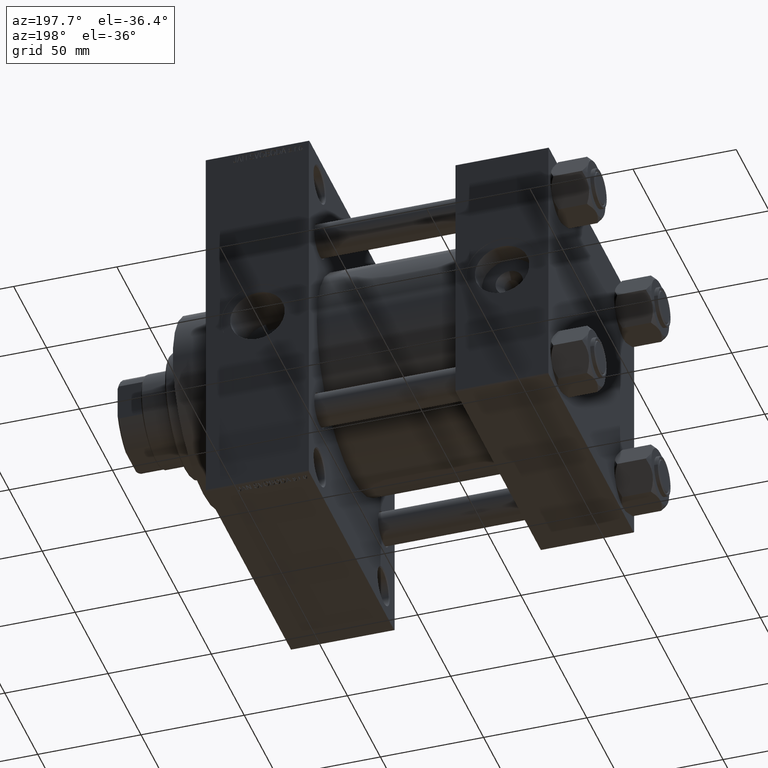
[diagram: clean part render]
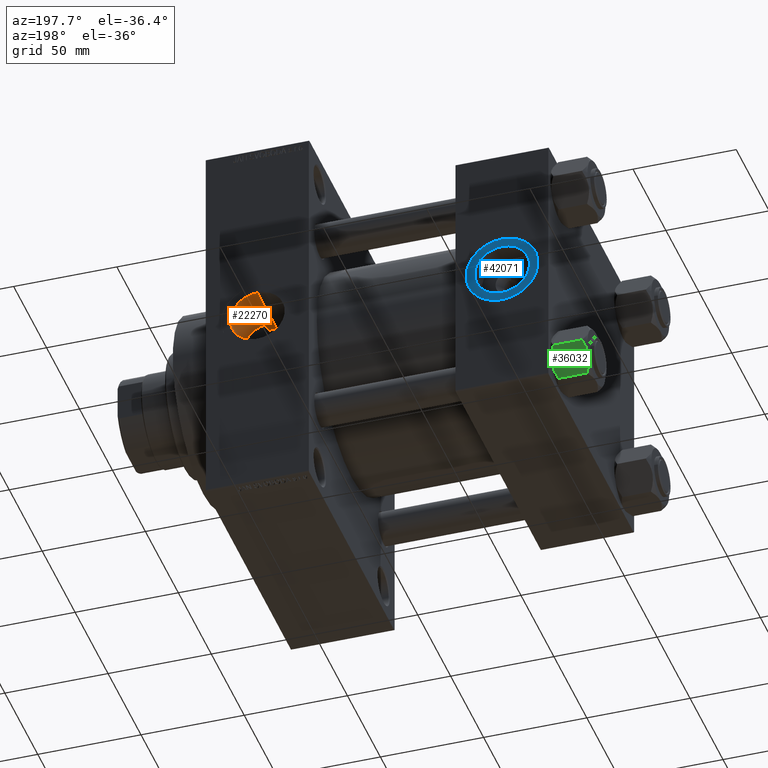
[diagram: same view with three faces highlighted in distinct colors, each labeled with its STEP entity id]
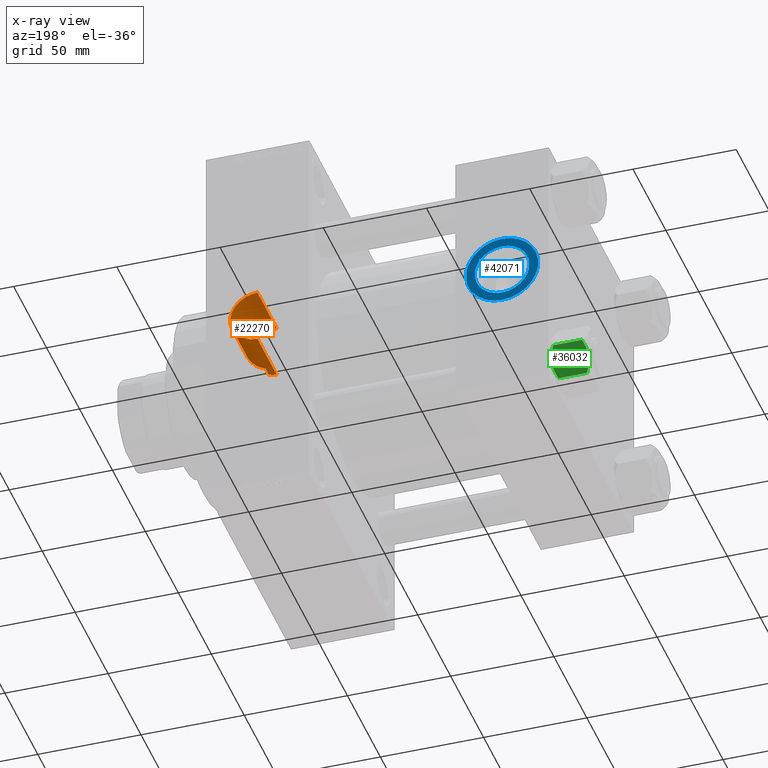
[diagram: x-ray of the same camera — body ghosted, the three highlighted faces saturated]
A machine part, auxiliary view with three faces highlighted in distinct colors.
The next image is the same camera in x-ray (body ghosted, the three faces saturated) — at least one of them is partly hidden behind the body in this view.
Their STEP definitions:

[orange] entity #22270 — the highlighted cylindrical surface (edge-blend (fillet) strip) has radius 13.22 mm, axis along (0, 1, 0).
#372 = CARTESIAN_POINT ( 'NONE',  ( 146.0894838391766086, 40.96701803660461394, -12.22163151364322076 ) ) ;
#677 = CARTESIAN_POINT ( 'NONE',  ( 141.0000000000000000, -37.39180658914465027, 13.22000000000001840 ) ) ;
#766 = ORIENTED_EDGE ( 'NONE', *, *, #33892, .F. ) ;
#1122 = CARTESIAN_POINT ( 'NONE',  ( 144.7399999999999807, 35.82204907595319554, -12.67993690836039811 ) ) ;
#1124 = CARTESIAN_POINT ( 'NONE',  ( 152.3813469663714670, 42.21646729893780048, -6.762467872710385741 ) ) ;
#1349 = VERTEX_POINT ( 'NONE', #28658 ) ;
#1501 = EDGE_CURVE ( 'NONE', #34100, #37805, #4705, .T. ) ;
#2157 = LINE ( 'NONE', #33372, #33901 ) ;
#2183 = B_SPLINE_CURVE_WITH_KNOTS ( 'NONE', 3,
 ( #1122, #34618, #8927, #12204 ),
 .UNSPECIFIED., .F., .F.,
 ( 4, 4 ),
 ( 0.000000000000000000, 0.003783319139312589507 ),
 .UNSPECIFIED. ) ;
#2382 = CARTESIAN_POINT ( 'NONE',  ( 141.6282740465759389, 35.62627681922430867, 13.22000000000001840 ) ) ;
#2891 = CARTESIAN_POINT ( 'NONE',  ( 153.3069645189583525, 42.47597988253322399, 4.879662359427110019 ) ) ;
#3553 = FACE_OUTER_BOUND ( 'NONE', #22161, .T. ) ;
#3897 = CARTESIAN_POINT ( 'NONE',  ( 149.9249778787971934, 41.62197581820227299, 9.758883457264651895 ) ) ;
#4143 = CARTESIAN_POINT ( 'NONE',  ( 154.2204402740232183, 42.75013615013602220, -0.3392730657541564998 ) ) ;
#4705 = LINE ( 'NONE', #677, #24949 ) ;
#6673 = CARTESIAN_POINT ( 'NONE',  ( 152.5392672892635062, 42.26019519886383335, 6.460440162556753130 ) ) ;
#7674 = CARTESIAN_POINT ( 'NONE',  ( 147.3542414019935052, 41.14336595071720382, 11.61405540322420116 ) ) ;
#7751 = VERTEX_POINT ( 'NONE', #20559 ) ;
#7813 = EDGE_CURVE ( 'NONE', #1349, #45401, #2157, .T. ) ;
#7930 = CARTESIAN_POINT ( 'NONE',  ( 153.9355267676177732, 42.66274983104982255, -2.818638351193889946 ) ) ;
#8177 = CARTESIAN_POINT ( 'NONE',  ( 152.0065971449162419, 42.11617814458289644, -7.356591765198853494 ) ) ;
#8927 = CARTESIAN_POINT ( 'NONE',  ( 142.2727728702443244, 35.62627681922430867, -13.22000000000000774 ) ) ;
#9402 = AXIS2_PLACEMENT_3D ( 'NONE', #18169, #25964, #18664 ) ;
#10374 = CYLINDRICAL_SURFACE ( 'NONE', #9402, 13.22000000000001307 ) ;
#11957 = CARTESIAN_POINT ( 'NONE',  ( 147.9852428248123601, 41.24640677797844290, -11.24586139236917504 ) ) ;
#12204 = CARTESIAN_POINT ( 'NONE',  ( 141.0000000000000000, 35.62627681922430867, -13.22000000000000774 ) ) ;
#14245 = CARTESIAN_POINT ( 'NONE',  ( 151.7830761643834308, 42.05979779156206888, 7.656286047219438728 ) ) ;
#14911 = EDGE_CURVE ( 'NONE', #44430, #45401, #46513, .T. ) ;
#15126 = ORIENTED_EDGE ( 'NONE', *, *, #43290, .T. ) ;
#15495 = CARTESIAN_POINT ( 'NONE',  ( 149.6796625534670682, 41.56787051534882949, -9.996256312412166167 ) ) ;
#15748 = CARTESIAN_POINT ( 'NONE',  ( 154.2190876467556677, 42.74971786429957632, 0.7287734874664830720 ) ) ;
#15995 = CARTESIAN_POINT ( 'NONE',  ( 145.4270130609600358, 40.88917361113285409, -12.47729955562274284 ) ) ;
#17253 = EDGE_CURVE ( 'NONE', #37805, #7751, #19792, .T. ) ;
#17901 = CARTESIAN_POINT ( 'NONE',  ( 141.0000000000000000, 64.79999999999996874, 4.747664250041786301E-15 ) ) ;
#18151 = LINE ( 'NONE', #48109, #35510 ) ;
#18169 = CARTESIAN_POINT ( 'NONE',  ( 141.0000000000000000, -37.39180658914465027, 4.747664250041786301E-15 ) ) ;
#18255 = CARTESIAN_POINT ( 'NONE',  ( 153.6458388575749439, 42.57581106965983508, 3.870036135680960498 ) ) ;
#18664 = DIRECTION ( 'NONE',  ( 0.000000000000000000, 0.000000000000000000, 1.000000000000000000 ) ) ;
#18958 = AXIS2_PLACEMENT_3D ( 'NONE', #17901, #48588, #37776 ) ;
#19256 = CARTESIAN_POINT ( 'NONE',  ( 150.6899591689121962, 41.79050880085015507, -9.020331125314259069 ) ) ;
#19505 = CARTESIAN_POINT ( 'NONE',  ( 153.0363689430458010, 42.39775029133585349, -5.512880659442456199 ) ) ;
#19792 = CIRCLE ( 'NONE', #18958, 13.22000000000001307 ) ;
#20559 = CARTESIAN_POINT ( 'NONE',  ( 141.0000000000000000, 64.79999999999996874, -13.22000000000000774 ) ) ;
#21128 = ORIENTED_EDGE ( 'NONE', *, *, #7813, .T. ) ;
#21537 = DIRECTION ( 'NONE',  ( -0.000000000000000000, 1.000000000000000000, -0.000000000000000000 ) ) ;
#22161 = EDGE_LOOP ( 'NONE', ( #766, #24061, #21128, #36257, #15126, #44152, #30688, #25311 ) ) ;
#22265 = CARTESIAN_POINT ( 'NONE',  ( 149.1188874313220651, 41.45647642344566464, 10.43915827880388392 ) ) ;
#22270 = ADVANCED_FACE ( 'NONE', ( #3553 ), #10374, .F. ) ;
#23017 = CARTESIAN_POINT ( 'NONE',  ( 148.8355753955778198, 41.40179266465072772, 10.65353493722053457 ) ) ;
#23035 = EDGE_CURVE ( 'NONE', #34100, #25022, #25033, .T. ) ;
#23575 = DIRECTION ( 'NONE',  ( -0.000000000000000000, 1.000000000000000000, -0.000000000000000000 ) ) ;
#24025 = CARTESIAN_POINT ( 'NONE',  ( 154.1491276445503047, 42.72812791392466636, -1.413347075717677814 ) ) ;
#24061 = ORIENTED_EDGE ( 'NONE', *, *, #25928, .F. ) ;
#24722 = VERTEX_POINT ( 'NONE', #36647 ) ;
#24949 = VECTOR ( 'NONE', #23575, 1000.000000000000000 ) ;
#25022 = VERTEX_POINT ( 'NONE', #29022 ) ;
#25033 = B_SPLINE_CURVE_WITH_KNOTS ( 'NONE', 3,
 ( #39914, #2382, #44181, #48188, #32862, #33598 ),
 .UNSPECIFIED., .F., .F.,
 ( 4, 2, 4 ),
 ( 0.04545619301634513942, 0.04734185353013070641, 0.04922751404391628033 ),
 .UNSPECIFIED. ) ;
#25072 = CARTESIAN_POINT ( 'NONE',  ( 141.0000000000000000, 35.62627681922430156, 13.22000000000001840 ) ) ;
#25311 = ORIENTED_EDGE ( 'NONE', *, *, #17253, .T. ) ;
#25852 = CARTESIAN_POINT ( 'NONE',  ( 144.7399999999999807, 40.82623788692755795, 12.67993690836040344 ) ) ;
#25928 = EDGE_CURVE ( 'NONE', #1349, #24722, #2183, .T. ) ;
#25964 = DIRECTION ( 'NONE',  ( -0.000000000000000000, 1.000000000000000000, -0.000000000000000000 ) ) ;
#26434 = VECTOR ( 'NONE', #30659, 1000.000000000000000 ) ;
#28058 = CARTESIAN_POINT ( 'NONE',  ( 154.1061453106131296, 42.71489450414986067, -1.767314014186000426 ) ) ;
#28658 = CARTESIAN_POINT ( 'NONE',  ( 144.7399999999999807, 35.82204907595319554, -12.67993690836039811 ) ) ;
#29022 = CARTESIAN_POINT ( 'NONE',  ( 144.7399999999999807, 35.82204907595318844, 12.67993690836040876 ) ) ;
#29583 = CARTESIAN_POINT ( 'NONE',  ( 151.9856094472935411, 42.11228528523243853, 7.362719038215917777 ) ) ;
#30082 = CARTESIAN_POINT ( 'NONE',  ( 146.0866117877859551, 40.96674013684113191, 12.22248122208935328 ) ) ;
#30659 = DIRECTION ( 'NONE',  ( -0.000000000000000000, 1.000000000000000000, -0.000000000000000000 ) ) ;
#30688 = ORIENTED_EDGE ( 'NONE', *, *, #1501, .T. ) ;
#31095 = CARTESIAN_POINT ( 'NONE',  ( 149.1389740240205413, 41.45739201802923901, -10.44126992344760652 ) ) ;
#31340 = CARTESIAN_POINT ( 'NONE',  ( 154.2064277639875627, 42.74579618513910617, -0.6981213961015061420 ) ) ;
#32862 = CARTESIAN_POINT ( 'NONE',  ( 144.1313497833392319, 35.75850296764753011, 12.85946081504565441 ) ) ;
#33370 = CARTESIAN_POINT ( 'NONE',  ( 150.6811910902559362, 41.78848794132223077, 9.029589412144920502 ) ) ;
#33372 = CARTESIAN_POINT ( 'NONE',  ( 144.7399999999999807, -37.39180658914465027, -12.67993690836039633 ) ) ;
#33598 = CARTESIAN_POINT ( 'NONE',  ( 144.7399999999999807, 35.82204907595318844, 12.67993690836040876 ) ) ;
#33616 = CARTESIAN_POINT ( 'NONE',  ( 153.7463103793545542, 42.60581913250619834, 3.525264913244969822 ) ) ;
#33892 = EDGE_CURVE ( 'NONE', #24722, #7751, #49774, .T. ) ;
#33901 = VECTOR ( 'NONE', #21537, 1000.000000000000000 ) ;
#34100 = VERTEX_POINT ( 'NONE', #25072 ) ;
#34190 = CARTESIAN_POINT ( 'NONE',  ( 141.0000000000000000, -37.39180658914465027, -13.22000000000000774 ) ) ;
#34618 = CARTESIAN_POINT ( 'NONE',  ( 143.5192982015359462, 35.69460173991232210, -13.03998796849188579 ) ) ;
#35510 = VECTOR ( 'NONE', #41304, 1000.000000000000000 ) ;
#35628 = CARTESIAN_POINT ( 'NONE',  ( 153.9180342834379189, 42.65750819507706382, 2.832015403792554231 ) ) ;
#36257 = ORIENTED_EDGE ( 'NONE', *, *, #14911, .F. ) ;
#36647 = CARTESIAN_POINT ( 'NONE',  ( 141.0000000000000000, 35.62627681922430867, -13.22000000000000774 ) ) ;
#37392 = CARTESIAN_POINT ( 'NONE',  ( 153.0298137930815017, 42.39589313351282840, 5.526869527314867803 ) ) ;
#37776 = DIRECTION ( 'NONE',  ( 0.000000000000000000, 0.000000000000000000, 1.000000000000000000 ) ) ;
#37805 = VERTEX_POINT ( 'NONE', #46970 ) ;
#38204 = CARTESIAN_POINT ( 'NONE',  ( 144.7399999999999807, 40.82623788692755795, -12.67993690836039278 ) ) ;
#38394 = CARTESIAN_POINT ( 'NONE',  ( 149.6630199548697533, 41.56646507779677790, 9.992219170631109648 ) ) ;
#39914 = CARTESIAN_POINT ( 'NONE',  ( 141.0000000000000000, 35.62627681922430156, 13.22000000000001840 ) ) ;
#41304 = DIRECTION ( 'NONE',  ( 0.000000000000000000, -1.000000000000000000, 0.000000000000000000 ) ) ;
#42159 = CARTESIAN_POINT ( 'NONE',  ( 144.7399999999999807, 40.82623788692755795, 12.67993690836040344 ) ) ;
#42409 = CARTESIAN_POINT ( 'NONE',  ( 154.1610424353113729, 42.73166586794578592, 1.434504108584251147 ) ) ;
#42662 = CARTESIAN_POINT ( 'NONE',  ( 153.7664851930732652, 42.61139927358284041, -3.505481660100325136 ) ) ;
#42918 = CARTESIAN_POINT ( 'NONE',  ( 151.1624956355439906, 41.90350341365520137, -8.484592245230071939 ) ) ;
#43290 = EDGE_CURVE ( 'NONE', #44430, #25022, #18151, .T. ) ;
#44152 = ORIENTED_EDGE ( 'NONE', *, *, #23035, .F. ) ;
#44181 = CARTESIAN_POINT ( 'NONE',  ( 142.2553808884960063, 35.64290802874815967, 13.17544286684376331 ) ) ;
#44430 = VERTEX_POINT ( 'NONE', #25852 ) ;
#45401 = VERTEX_POINT ( 'NONE', #38204 ) ;
#45434 = CARTESIAN_POINT ( 'NONE',  ( 152.3632172565832548, 42.21236386932922358, 6.765392829973857047 ) ) ;
#45681 = CARTESIAN_POINT ( 'NONE',  ( 147.9623401956243640, 41.24246182355482659, 11.26040908465784263 ) ) ;
#46188 = CARTESIAN_POINT ( 'NONE',  ( 153.9894081557862933, 42.67922043224352535, 2.483804695984523470 ) ) ;
#46433 = CARTESIAN_POINT ( 'NONE',  ( 153.3180906512882871, 42.47921328321763923, -4.851410986599756114 ) ) ;
#46513 = B_SPLINE_CURVE_WITH_KNOTS ( 'NONE', 3,
 ( #42159, #49446, #30082, #7674, #45681, #23017, #22265, #38394, #3897, #33370, #48704, #14245, #29583, #45434, #6673, #37392, #2891, #18255, #33616, #35628, #46188, #42409, #15748, #4143, #31340, #24025, #28058, #7930, #42662, #46433, #19505, #1124, #8177, #42918, #19256, #15495, #31095, #11957, #47182, #372, #15995, #46684 ),
 .UNSPECIFIED., .F., .F.,
 ( 4, 2, 2, 2, 2, 2, 2, 2, 2, 2, 2, 2, 2, 2, 2, 2, 2, 2, 2, 2, 4 ),
 ( 1.734723475976807094E-18, 0.002125631886811205854, 0.004251263773622409974, 0.005314079717027975387, 0.006376895660433540801, 0.008502527547244679434, 0.009565343490650272604, 0.01062815943405586751, 0.01275379132086709548, 0.01381660726427269732, 0.01487942320767829917, 0.01700505509448948377, 0.01806787103789508214, 0.01913068698130067358, 0.02125631886811184951, 0.02338195075492302544, 0.02550758264173419443, 0.02763321452854537036, 0.02975884641535654629, 0.03188447830216771528, 0.03401011018897889121 ),
 .UNSPECIFIED. ) ;
#46684 = CARTESIAN_POINT ( 'NONE',  ( 144.7399999999999807, 40.82623788692755795, -12.67993690836039278 ) ) ;
#46970 = CARTESIAN_POINT ( 'NONE',  ( 141.0000000000000000, 64.79999999999996874, 13.22000000000001840 ) ) ;
#47182 = CARTESIAN_POINT ( 'NONE',  ( 147.3674952756207972, 41.14533651760915234, -11.60715841709175322 ) ) ;
#48109 = CARTESIAN_POINT ( 'NONE',  ( 144.7399999999999807, -37.39180658914465027, 12.67993690836040699 ) ) ;
#48188 = CARTESIAN_POINT ( 'NONE',  ( 143.5072241350725619, 35.70892163639344119, 12.99546471078180154 ) ) ;
#48588 = DIRECTION ( 'NONE',  ( 0.000000000000000000, 1.000000000000000000, 0.000000000000000000 ) ) ;
#48704 = CARTESIAN_POINT ( 'NONE',  ( 151.1459938556710654, 41.89947882874082552, 8.504551669291316784 ) ) ;
#49446 = CARTESIAN_POINT ( 'NONE',  ( 145.4270925851358811, 40.88918089616405638, 12.47727609963713391 ) ) ;
#49774 = LINE ( 'NONE', #34190, #26434 ) ;

[blue] entity #42071 — the highlighted planar face has unit normal (0, 1, 0).
#410 = ORIENTED_EDGE ( 'NONE', *, *, #40265, .F. ) ;
#1371 = FACE_OUTER_BOUND ( 'NONE', #29244, .T. ) ;
#3380 = CIRCLE ( 'NONE', #44399, 13.22000000000000419 ) ;
#4325 = VERTEX_POINT ( 'NONE', #7065 ) ;
#5031 = CIRCLE ( 'NONE', #28350, 17.50000000000000000 ) ;
#5276 = EDGE_CURVE ( 'NONE', #43586, #38360, #5031, .T. ) ;
#5367 = DIRECTION ( 'NONE',  ( 0.000000000000000000, 0.000000000000000000, 1.000000000000000000 ) ) ;
#5512 = DIRECTION ( 'NONE',  ( 0.000000000000000000, 1.000000000000000000, 0.000000000000000000 ) ) ;
#5637 = EDGE_LOOP ( 'NONE', ( #410, #34992 ) ) ;
#6488 = DIRECTION ( 'NONE',  ( 0.000000000000000000, 0.000000000000000000, 1.000000000000000000 ) ) ;
#7065 = CARTESIAN_POINT ( 'NONE',  ( 22.50000000000000000, 64.79999999999999716, 13.22000000000000419 ) ) ;
#8074 = CIRCLE ( 'NONE', #26538, 17.50000000000000000 ) ;
#8726 = CARTESIAN_POINT ( 'NONE',  ( 22.50000000000000000, 64.79999999999999716, 0.000000000000000000 ) ) ;
#8934 = DIRECTION ( 'NONE',  ( 0.000000000000000000, 1.000000000000000000, 0.000000000000000000 ) ) ;
#9426 = CARTESIAN_POINT ( 'NONE',  ( 22.50000000000000000, 64.79999999999999716, 0.000000000000000000 ) ) ;
#9876 = AXIS2_PLACEMENT_3D ( 'NONE', #9426, #8934, #28064 ) ;
#10518 = DIRECTION ( 'NONE',  ( 0.000000000000000000, 1.000000000000000000, 0.000000000000000000 ) ) ;
#16468 = DIRECTION ( 'NONE',  ( 0.000000000000000000, 1.000000000000000000, 0.000000000000000000 ) ) ;
#20509 = PLANE ( 'NONE',  #9876 ) ;
#24214 = ORIENTED_EDGE ( 'NONE', *, *, #5276, .T. ) ;
#24632 = CARTESIAN_POINT ( 'NONE',  ( 22.50000000000000000, 64.79999999999999716, 0.000000000000000000 ) ) ;
#25618 = CARTESIAN_POINT ( 'NONE',  ( 22.50000000000000000, 64.79999999999999716, 0.000000000000000000 ) ) ;
#26538 = AXIS2_PLACEMENT_3D ( 'NONE', #39847, #16468, #5367 ) ;
#28064 = DIRECTION ( 'NONE',  ( 0.000000000000000000, -0.000000000000000000, 1.000000000000000000 ) ) ;
#28350 = AXIS2_PLACEMENT_3D ( 'NONE', #8726, #39179, #30884 ) ;
#29244 = EDGE_LOOP ( 'NONE', ( #44341, #24214 ) ) ;
#30884 = DIRECTION ( 'NONE',  ( 0.000000000000000000, 0.000000000000000000, 1.000000000000000000 ) ) ;
#31361 = VERTEX_POINT ( 'NONE', #44862 ) ;
#34992 = ORIENTED_EDGE ( 'NONE', *, *, #45297, .F. ) ;
#36230 = DIRECTION ( 'NONE',  ( 0.000000000000000000, 0.000000000000000000, 1.000000000000000000 ) ) ;
#37309 = EDGE_CURVE ( 'NONE', #38360, #43586, #8074, .T. ) ;
#37900 = CIRCLE ( 'NONE', #44326, 13.22000000000000419 ) ;
#38360 = VERTEX_POINT ( 'NONE', #46599 ) ;
#39179 = DIRECTION ( 'NONE',  ( 0.000000000000000000, 1.000000000000000000, 0.000000000000000000 ) ) ;
#39847 = CARTESIAN_POINT ( 'NONE',  ( 22.50000000000000000, 64.79999999999999716, 0.000000000000000000 ) ) ;
#40265 = EDGE_CURVE ( 'NONE', #4325, #31361, #37900, .T. ) ;
#42071 = ADVANCED_FACE ( 'NONE', ( #43909, #1371 ), #20509, .T. ) ;
#43307 = CARTESIAN_POINT ( 'NONE',  ( 22.50000000000000355, 64.79999999999999716, -17.50000000000000000 ) ) ;
#43586 = VERTEX_POINT ( 'NONE', #43307 ) ;
#43909 = FACE_BOUND ( 'NONE', #5637, .T. ) ;
#44326 = AXIS2_PLACEMENT_3D ( 'NONE', #24632, #5512, #36230 ) ;
#44341 = ORIENTED_EDGE ( 'NONE', *, *, #37309, .T. ) ;
#44399 = AXIS2_PLACEMENT_3D ( 'NONE', #25618, #10518, #6488 ) ;
#44862 = CARTESIAN_POINT ( 'NONE',  ( 22.50000000000000000, 64.79999999999999716, -13.22000000000000419 ) ) ;
#45297 = EDGE_CURVE ( 'NONE', #31361, #4325, #3380, .T. ) ;
#46599 = CARTESIAN_POINT ( 'NONE',  ( 22.50000000000000000, 64.79999999999999716, 17.50000000000000000 ) ) ;

[green] entity #36032 — the highlighted planar face has unit normal (0, -0.866, 0.5).
#418 = DIRECTION ( 'NONE',  ( 0.4999999999999994449, -0.8660254037844390407, 0.000000000000000000 ) ) ;
#1103 = EDGE_CURVE ( 'NONE', #9160, #38809, #39616, .T. ) ;
#1424 = CARTESIAN_POINT ( 'NONE',  ( -9.114548888011787753, -11.26777185211903820, -17.08577173959730899 ) ) ;
#3989 = EDGE_CURVE ( 'NONE', #26083, #30445, #30288, .T. ) ;
#4009 = VERTEX_POINT ( 'NONE', #23228 ) ;
#4395 = CARTESIAN_POINT ( 'NONE',  ( -11.71500000000000874, -6.763658403556459753, 0.000000000000000000 ) ) ;
#4425 = CARTESIAN_POINT ( 'NONE',  ( -11.71500000000000874, -6.763658403556459753, -18.00000000000000000 ) ) ;
#4463 = EDGE_CURVE ( 'NONE', #26083, #48902, #34424, .T. ) ;
#4491 = ORIENTED_EDGE ( 'NONE', *, *, #22154, .F. ) ;
#4545 = VECTOR ( 'NONE', #44356, 1000.000000000000000 ) ;
#4636 = EDGE_CURVE ( 'NONE', #38809, #24960, #31625, .T. ) ;
#4888 = CARTESIAN_POINT ( 'NONE',  ( -7.809999999999999609, -13.52731680711293727, -1.999999999999998224 ) ) ;
#6474 = LINE ( 'NONE', #46234, #9763 ) ;
#7385 = VECTOR ( 'NONE', #22822, 999.9999999999998863 ) ;
#7445 = ORIENTED_EDGE ( 'NONE', *, *, #1103, .F. ) ;
#7977 = CARTESIAN_POINT ( 'NONE',  ( -7.809999999999999609, -13.52731680711293727, -16.00000000000000000 ) ) ;
#8198 = CARTESIAN_POINT ( 'NONE',  ( -13.99051971937274530, -2.822342635977989289, -17.26828031537188934 ) ) ;
#8244 = CARTESIAN_POINT ( 'NONE',  ( -7.809999999999999609, -13.52731680711293727, -16.00000000000000000 ) ) ;
#8845 = ORIENTED_EDGE ( 'NONE', *, *, #3989, .T. ) ;
#9143 = ORIENTED_EDGE ( 'NONE', *, *, #39462, .F. ) ;
#9160 = VERTEX_POINT ( 'NONE', #26755 ) ;
#9174 = CARTESIAN_POINT ( 'NONE',  ( -7.809999999999999609, -13.52731680711293727, -16.00000000000000000 ) ) ;
#9624 = B_SPLINE_CURVE_WITH_KNOTS ( 'NONE', 3,
 ( #4425, #42938, #39159, #8198, #34898, #15763, #11978, #27324 ),
 .UNSPECIFIED., .F., .F.,
 ( 4, 2, 2, 4 ),
 ( 0.007890825462474436100, 0.01181022244528555712, 0.01376992093669111850, 0.01572961942809667987 ),
 .UNSPECIFIED. ) ;
#9763 = VECTOR ( 'NONE', #418, 999.9999999999998863 ) ;
#10685 = CARTESIAN_POINT ( 'NONE',  ( -13.36540581434588226, -3.905071680002305534, -0.3836066851120543686 ) ) ;
#10701 = EDGE_CURVE ( 'NONE', #18302, #26747, #9624, .T. ) ;
#11978 = CARTESIAN_POINT ( 'NONE',  ( -15.22736220980736199, -0.6800686015852018818, -16.29368822085855584 ) ) ;
#12951 = DIRECTION ( 'NONE',  ( 0.4999999999999994449, -0.8660254037844390407, 0.000000000000000000 ) ) ;
#13653 = AXIS2_PLACEMENT_3D ( 'NONE', #38166, #45954, #42942 ) ;
#13798 = CARTESIAN_POINT ( 'NONE',  ( -8.506059550806618574, -12.32170630002230816, -1.434462921875002461 ) ) ;
#14225 = CARTESIAN_POINT ( 'NONE',  ( -13.04337073483128329, -4.462852799541069615, -0.2430846701012900901 ) ) ;
#14537 = CARTESIAN_POINT ( 'NONE',  ( -7.903528262322674358, -13.36532110482643354, -2.000000000000000000 ) ) ;
#15763 = CARTESIAN_POINT ( 'NONE',  ( -14.92394044919338825, -1.205610507090610461, -16.56553707812500065 ) ) ;
#15766 = FACE_OUTER_BOUND ( 'NONE', #28039, .T. ) ;
#16646 = ORIENTED_EDGE ( 'NONE', *, *, #39509, .F. ) ;
#18076 = CARTESIAN_POINT ( 'NONE',  ( -15.52647173767732980, -0.1619957022864788043, -16.00000000000000000 ) ) ;
#18302 = VERTEX_POINT ( 'NONE', #41858 ) ;
#19274 = PLANE ( 'NONE',  #13653 ) ;
#19427 = VECTOR ( 'NONE', #46143, 1000.000000000000000 ) ;
#20070 = CARTESIAN_POINT ( 'NONE',  ( -11.38181071908714692, -7.340759166634859945, -18.00000000000001421 ) ) ;
#21515 = CARTESIAN_POINT ( 'NONE',  ( -14.31545111198821552, -2.259544954993873311, -0.9142282604026915616 ) ) ;
#22154 = EDGE_CURVE ( 'NONE', #4009, #9160, #35846, .T. ) ;
#22822 = DIRECTION ( 'NONE',  ( -0.4999999999999994449, 0.8660254037844390407, 0.000000000000000000 ) ) ;
#23228 = CARTESIAN_POINT ( 'NONE',  ( -15.61999999999999567, 8.023367828467702033E-15, -16.00000000000000000 ) ) ;
#23334 = VECTOR ( 'NONE', #12951, 999.9999999999998863 ) ;
#23587 = DIRECTION ( 'NONE',  ( -0.4999999999999994449, 0.8660254037844390407, 0.000000000000000000 ) ) ;
#23827 = VERTEX_POINT ( 'NONE', #33850 ) ;
#24332 = CARTESIAN_POINT ( 'NONE',  ( -11.04378428799595468, -7.926238119585997666, -17.94910618364700028 ) ) ;
#24721 = ORIENTED_EDGE ( 'NONE', *, *, #26883, .F. ) ;
#24960 = VERTEX_POINT ( 'NONE', #4395 ) ;
#25578 = VECTOR ( 'NONE', #23587, 999.9999999999998863 ) ;
#26030 = CARTESIAN_POINT ( 'NONE',  ( -11.71500000000000874, -6.763658403556459753, 0.000000000000000000 ) ) ;
#26083 = VERTEX_POINT ( 'NONE', #9174 ) ;
#26747 = VERTEX_POINT ( 'NONE', #18076 ) ;
#26755 = CARTESIAN_POINT ( 'NONE',  ( -15.61999999999999567, 8.023367828467702033E-15, -1.999999999999998224 ) ) ;
#26883 = EDGE_CURVE ( 'NONE', #26747, #4009, #42226, .T. ) ;
#27324 = CARTESIAN_POINT ( 'NONE',  ( -15.52647173767732980, -0.1619957022864788043, -16.00000000000000000 ) ) ;
#27867 = CARTESIAN_POINT ( 'NONE',  ( -10.06459418565412456, -9.622245127110602425, -17.61639331488794014 ) ) ;
#28039 = EDGE_LOOP ( 'NONE', ( #47173, #8845, #16646, #9143, #45292, #7445, #4491, #24721, #33583, #37429 ) ) ;
#29387 = CARTESIAN_POINT ( 'NONE',  ( -10.40215497533437805, -9.037572688741340343, -0.1971866459924474513 ) ) ;
#29559 = CARTESIAN_POINT ( 'NONE',  ( -12.38621571200405391, -5.601078687526916511, -0.05089381635300645190 ) ) ;
#29637 = CARTESIAN_POINT ( 'NONE',  ( -11.05297796109637787, -7.910314210667872103, 9.086969458144130882E-15 ) ) ;
#29676 = B_SPLINE_CURVE_WITH_KNOTS ( 'NONE', 3,
 ( #47969, #35431, #1424, #27867, #40430, #24332, #20070, #39938 ),
 .UNSPECIFIED., .F., .F.,
 ( 4, 2, 2, 4 ),
 ( 4.472842641813524291E-07, 0.003945636373369312659, 0.005918230917921874813, 0.007890825462474436100 ),
 .UNSPECIFIED. ) ;
#30064 = CARTESIAN_POINT ( 'NONE',  ( -14.92760668674625002, -1.199260397376427090, -1.411989271640064825 ) ) ;
#30288 = LINE ( 'NONE', #49656, #19427 ) ;
#30445 = VERTEX_POINT ( 'NONE', #47636 ) ;
#31625 = B_SPLINE_CURVE_WITH_KNOTS ( 'NONE', 3,
 ( #33596, #30064, #21515, #10685, #14225, #29559, #44918, #26030 ),
 .UNSPECIFIED., .F., .F.,
 ( 4, 2, 2, 4 ),
 ( 4.472842641982724416E-07, 0.003945636373369324802, 0.005918230917921887824, 0.007890825462474451713 ),
 .UNSPECIFIED. ) ;
#32429 = B_SPLINE_CURVE_WITH_KNOTS ( 'NONE', 3,
 ( #33667, #29637, #29387, #48754, #40225, #13798, #49000, #14537 ),
 .UNSPECIFIED., .F., .F.,
 ( 4, 2, 2, 4 ),
 ( 0.007890825462474451713, 0.01181022244528557794, 0.01376992093669113758, 0.01572961942809669722 ),
 .UNSPECIFIED. ) ;
#33583 = ORIENTED_EDGE ( 'NONE', *, *, #10701, .F. ) ;
#33596 = CARTESIAN_POINT ( 'NONE',  ( -15.52647173767732980, -0.1619957022864788043, -2.000000000000000000 ) ) ;
#33667 = CARTESIAN_POINT ( 'NONE',  ( -11.71500000000000874, -6.763658403556459753, 0.000000000000000000 ) ) ;
#33850 = CARTESIAN_POINT ( 'NONE',  ( -7.903528262322674358, -13.36532110482643354, -2.000000000000000000 ) ) ;
#34424 = LINE ( 'NONE', #7977, #7385 ) ;
#34898 = CARTESIAN_POINT ( 'NONE',  ( -14.30591678195076533, -2.276058899034876681, -17.05261278537718894 ) ) ;
#35431 = CARTESIAN_POINT ( 'NONE',  ( -8.502393313253753249, -12.32805640973648664, -16.58801072835993651 ) ) ;
#35846 = LINE ( 'NONE', #36329, #4545 ) ;
#36032 = ADVANCED_FACE ( 'NONE', ( #15766 ), #19274, .F. ) ;
#36329 = CARTESIAN_POINT ( 'NONE',  ( -15.61999999999999567, 8.023367828467702033E-15, -18.00000000000000000 ) ) ;
#37429 = ORIENTED_EDGE ( 'NONE', *, *, #45467, .F. ) ;
#38166 = CARTESIAN_POINT ( 'NONE',  ( -7.809999999999999609, -13.52731680711293727, -18.00000000000000000 ) ) ;
#38809 = VERTEX_POINT ( 'NONE', #48629 ) ;
#39159 = CARTESIAN_POINT ( 'NONE',  ( -13.02784502466562699, -4.489744118371570281, -17.80281335400755083 ) ) ;
#39462 = EDGE_CURVE ( 'NONE', #24960, #23827, #32429, .T. ) ;
#39509 = EDGE_CURVE ( 'NONE', #23827, #30445, #6474, .T. ) ;
#39616 = LINE ( 'NONE', #4888, #23334 ) ;
#39938 = CARTESIAN_POINT ( 'NONE',  ( -11.71500000000000874, -6.763658403556459753, -18.00000000000000000 ) ) ;
#40225 = CARTESIAN_POINT ( 'NONE',  ( -9.124083218049237942, -11.25125790807803838, -0.9473872146228101698 ) ) ;
#40430 = CARTESIAN_POINT ( 'NONE',  ( -10.38662926516872353, -9.064464007571846338, -17.75691532989871746 ) ) ;
#41858 = CARTESIAN_POINT ( 'NONE',  ( -11.71500000000000874, -6.763658403556459753, -18.00000000000000000 ) ) ;
#42226 = LINE ( 'NONE', #8244, #25578 ) ;
#42938 = CARTESIAN_POINT ( 'NONE',  ( -12.37702203890362540, -5.617002596445037632, -18.00000000000000711 ) ) ;
#42942 = DIRECTION ( 'NONE',  ( -0.4999999999999993894, 0.8660254037844389297, 0.000000000000000000 ) ) ;
#43301 = CARTESIAN_POINT ( 'NONE',  ( -7.903528262322674358, -13.36532110482643354, -16.00000000000000000 ) ) ;
#44356 = DIRECTION ( 'NONE',  ( -0.000000000000000000, -0.000000000000000000, 1.000000000000000000 ) ) ;
#44918 = CARTESIAN_POINT ( 'NONE',  ( -12.04818928091285635, -6.186557640478051567, 9.103910117089220044E-15 ) ) ;
#45292 = ORIENTED_EDGE ( 'NONE', *, *, #4636, .F. ) ;
#45467 = EDGE_CURVE ( 'NONE', #48902, #18302, #29676, .T. ) ;
#45954 = DIRECTION ( 'NONE',  ( 0.8660254037844390407, 0.4999999999999994449, 0.000000000000000000 ) ) ;
#46143 = DIRECTION ( 'NONE',  ( -0.000000000000000000, -0.000000000000000000, 1.000000000000000000 ) ) ;
#46234 = CARTESIAN_POINT ( 'NONE',  ( -7.809999999999999609, -13.52731680711293727, -1.999999999999998224 ) ) ;
#47173 = ORIENTED_EDGE ( 'NONE', *, *, #4463, .F. ) ;
#47636 = CARTESIAN_POINT ( 'NONE',  ( -7.809999999999999609, -13.52731680711293727, -1.999999999999998224 ) ) ;
#47969 = CARTESIAN_POINT ( 'NONE',  ( -7.903528262322674358, -13.36532110482643354, -16.00000000000000000 ) ) ;
#48629 = CARTESIAN_POINT ( 'NONE',  ( -15.52647173767732980, -0.1619957022864788043, -2.000000000000000000 ) ) ;
#48754 = CARTESIAN_POINT ( 'NONE',  ( -9.439480280627259745, -10.70497417113492311, -0.7317196846281081024 ) ) ;
#48902 = VERTEX_POINT ( 'NONE', #43301 ) ;
#49000 = CARTESIAN_POINT ( 'NONE',  ( -8.202637790192643052, -12.84724820552771085, -1.706311779141444829 ) ) ;
#49656 = CARTESIAN_POINT ( 'NONE',  ( -7.809999999999999609, -13.52731680711293727, -18.00000000000000000 ) ) ;